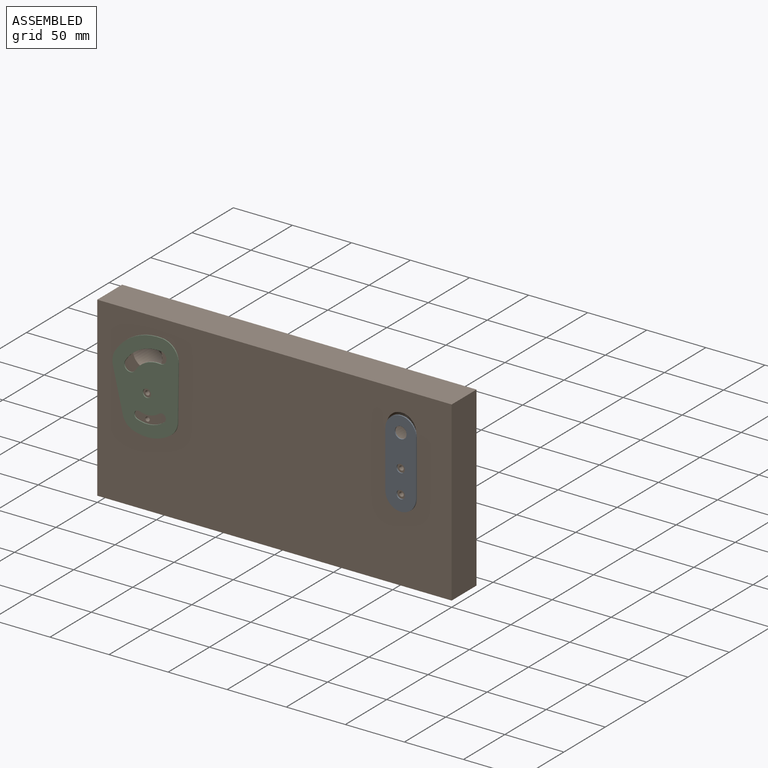
[diagram: assembled view]
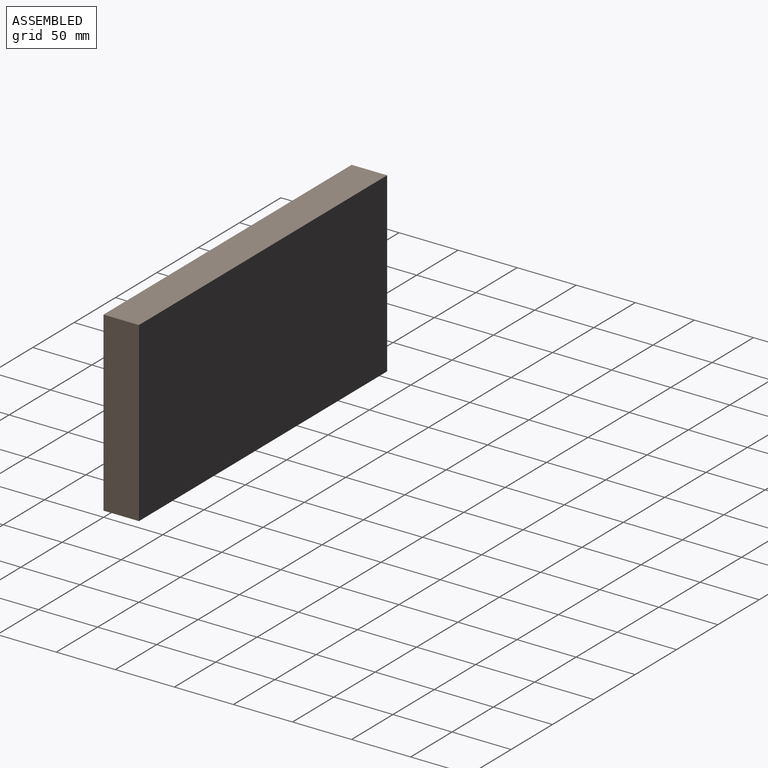
[diagram: assembled view, second angle]
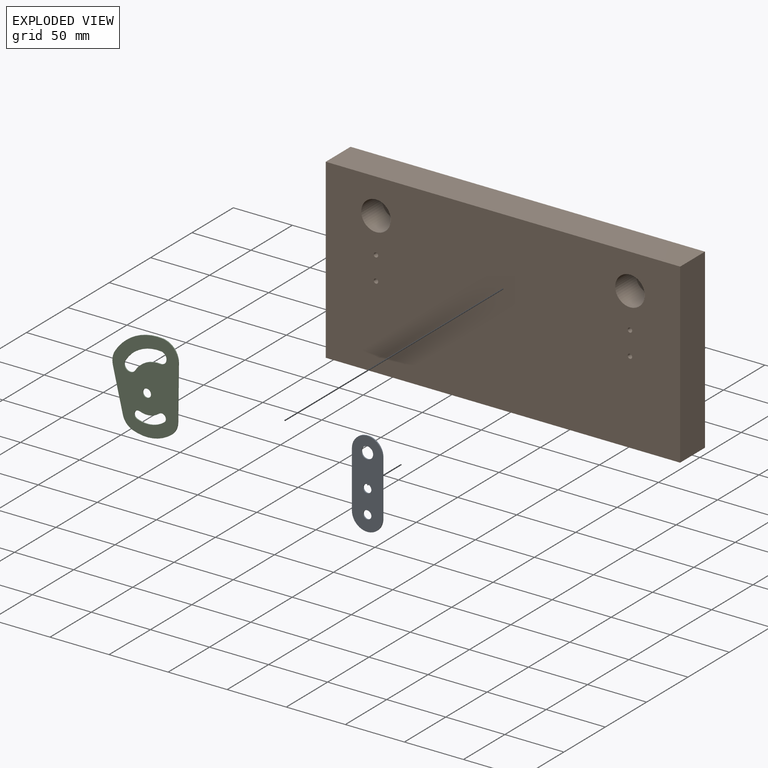
[diagram: exploded view]
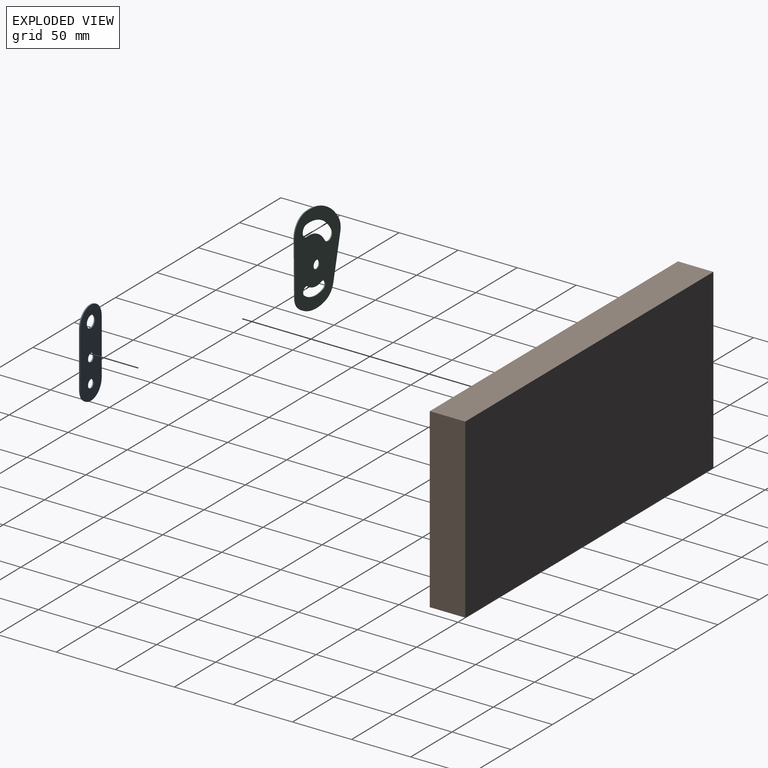
[diagram: exploded view, second angle]
ASSEMBLY  parts=3 mates=5
PART A: 9 faces, bbox 26x73.5x1 mm
  f0: plane 47.5x1mm, normal (1,0,0), area 47.5mm2, adj f1,f5,f7,f8
  f1: cylinder r=13mm len=26mm, axis (0,0,-1), area 40.8mm2, adj f0,f2,f7,f8
  f2: plane 47.5x1mm, normal (-1,0,0), area 47.5mm2, adj f1,f5,f7,f8
  f3: cylinder r=3.5mm len=7mm, axis (0,0,-1), area 22mm2, adj f7,f8
  f4: cylinder r=3.5mm len=7mm, axis (0,0,-1), area 22mm2, adj f7,f8
  f5: cylinder r=13mm len=26mm, axis (0,0,-1), area 40.8mm2, adj f0,f2,f7,f8
  f6: cylinder r=5mm len=10mm, axis (0,0,-1), area 31.4mm2, adj f7,f8
  f7: plane 73.5x26mm, normal (0,0,1), area 1610.4mm2, adj f0,f1,f2,f3,f4,f5,f6
  f8: plane 73.5x26mm, normal (0,0,-1), area 1610.4mm2, adj f0,f1,f2,f3,f4,f5,f6
PART B: 18 faces, bbox 300x30x150 mm
  f0: plane 300x150mm, normal (0,-1,0), area 43974.1mm2, adj f1,f2,f3,f4,f6,f8,f10,f12
  f1: plane 300x30mm, normal (0,0,1), area 9000mm2, adj f0,f2,f4,f5
  f2: plane 150x30mm, normal (-1,0,0), area 4500mm2, adj f0,f1,f3,f5
  f3: plane 300x30mm, normal (0,0,-1), area 9000mm2, adj f0,f2,f4,f5
  f4: plane 150x30mm, normal (1,0,0), area 4500mm2, adj f0,f1,f3,f5
  f5: plane 300x150mm, normal (0,1,0), area 45000mm2, adj f1,f2,f3,f4
  f6: cylinder r=12.5mm len=25mm, axis (0,-1,0), area 1963.5mm2, adj f0,f7
  f7: plane 25x25mm, normal (0,-1,0), area 490.9mm2, adj f6
  f8: cylinder r=1.88mm len=25mm, axis (0,-1,0), area 294.5mm2, adj f0,f9
  f9: plane 3.75x3.75mm, normal (0,-1,0), area 11mm2, adj f8
  f10: cylinder r=1.88mm len=25mm, axis (0,-1,0), area 294.5mm2, adj f0,f11
  f11: plane 3.75x3.75mm, normal (0,-1,0), area 11mm2, adj f10
  f12: cylinder r=1.88mm len=25mm, axis (0,-1,0), area 294.5mm2, adj f0,f13
  f13: plane 3.75x3.75mm, normal (0,-1,0), area 11mm2, adj f12
  f14: cylinder r=1.88mm len=25mm, axis (0,-1,0), area 294.5mm2, adj f0,f15
  f15: plane 3.75x3.75mm, normal (0,-1,0), area 11mm2, adj f14
  f16: cylinder r=12.5mm len=25mm, axis (0,-1,0), area 1963.5mm2, adj f0,f17
  f17: plane 25x25mm, normal (0,-1,0), area 490.9mm2, adj f16
PART C: 19 faces, bbox 57.5x77.5x0.8 mm
  f0: cylinder r=23.5mm len=23.5mm, axis (0,0,-1), area 19.7mm2, adj f1,f16,f17,f18
  f1: cylinder r=3.5mm len=6.53mm, axis (0,0,-1), area 8.8mm2, adj f0,f2,f17,f18
  f2: cylinder r=16.5mm len=16.5mm, axis (0,0,-1), area 13.8mm2, adj f1,f16,f17,f18
  f3: cylinder r=15mm len=17.04mm, axis (0,0,-1), area 17.8mm2, adj f4,f13,f17,f18
  f4: plane 45.21x7.73mm, normal (-0.99,-0.17,0), area 36.7mm2, adj f3,f5,f17,f18
  f5: cylinder r=13.5mm len=9.42mm, axis (0,0,-1), area 9.5mm2, adj f4,f6,f17,f18
  f6: cylinder r=33.5mm len=33.5mm, axis (0,0,-1), area 28.1mm2, adj f5,f7,f17,f18
  f7: cylinder r=13.5mm len=10.68mm, axis (0,0,-1), area 10.5mm2, adj f6,f8,f17,f18
  f8: plane 36.69x2.75mm, normal (1,-0.07,0), area 29.4mm2, adj f7,f9,f17,f18
  f9: cylinder r=15mm len=10.83mm, axis (0,0,-1), area 9.4mm2, adj f8,f13,f17,f18
  f10: cylinder r=5mm len=9.84mm, axis (0,0,-1), area 12.6mm2, adj f11,f15,f17,f18
  f11: cylinder r=32.09mm len=32.58mm, axis (0,0,-1), area 28.8mm2, adj f10,f12,f17,f18
  f12: cylinder r=5mm len=8.81mm, axis (0,0,-1), area 12.6mm2, adj f11,f15,f17,f18
  f13: cylinder r=42.09mm len=42.73mm, axis (0,0,-1), area 37.8mm2, adj f3,f9,f17,f18
  f14: cylinder r=3.5mm len=7mm, axis (0,0,-1), area 17.6mm2, adj f17,f18
  f15: cylinder r=22.09mm len=22.42mm, axis (0,0,-1), area 19.8mm2, adj f10,f12,f17,f18
  f16: cylinder r=3.5mm len=6.53mm, axis (0,0,-1), area 8.8mm2, adj f0,f2,f17,f18
  f17: plane 77.53x57.5mm, normal (0,0,1), area 3039.1mm2, adj f0,f1,f2,f3,f4,f5,f6,f7
  f18: plane 77.53x57.5mm, normal (0,0,-1), area 3039.1mm2, adj f0,f1,f2,f3,f4,f5,f6,f7
PLACE A rot(axis=(1,0,0),90deg) t=(107.5,0,16.01)mm
PLACE B t=(0,15,1.01)mm
PLACE C rot(axis=(-0.06,0.71,0.71),173.6deg) t=(-107.5,-0.8,16.01)mm
MATE planar A.f4 <-> B.f8  axis (0,1,0) through (107.5,0,16.01)mm
MATE planar B.f14 <-> C.f14  axis (0,-1,0) through (-107.5,0,16.01)mm
MATE slider A.f4 <-> B.f8  axis (0,1,0) through (107.5,-1,16.01)mm
MATE cylindrical B.f14 <-> C.f14  axis (0,-1,0) through (-107.5,0,16.01)mm
MATE slider A.f3 <-> B.f10  axis (0,-1,0) through (107.5,-1,-3.99)mm
